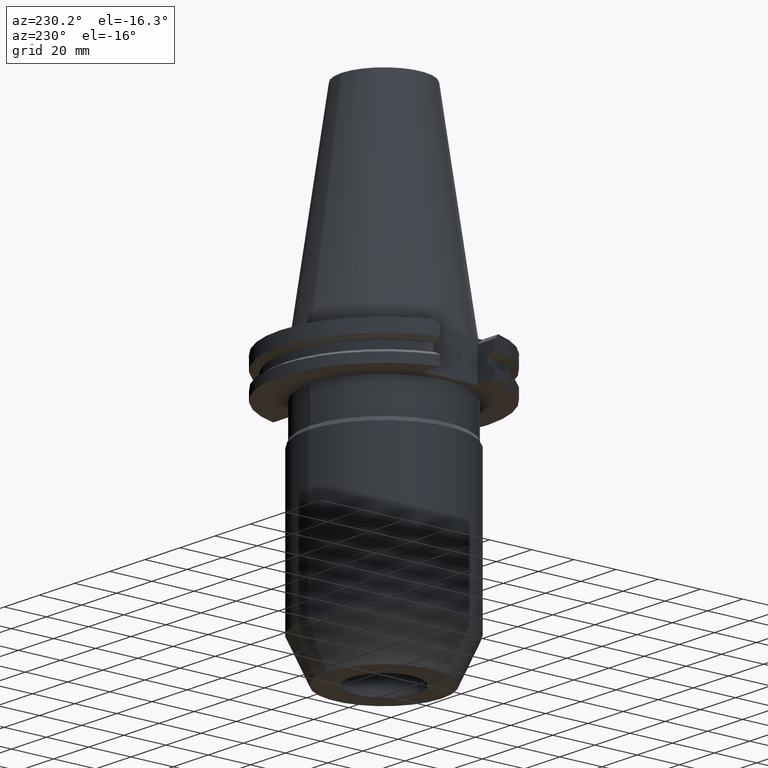
[diagram: clean part render]
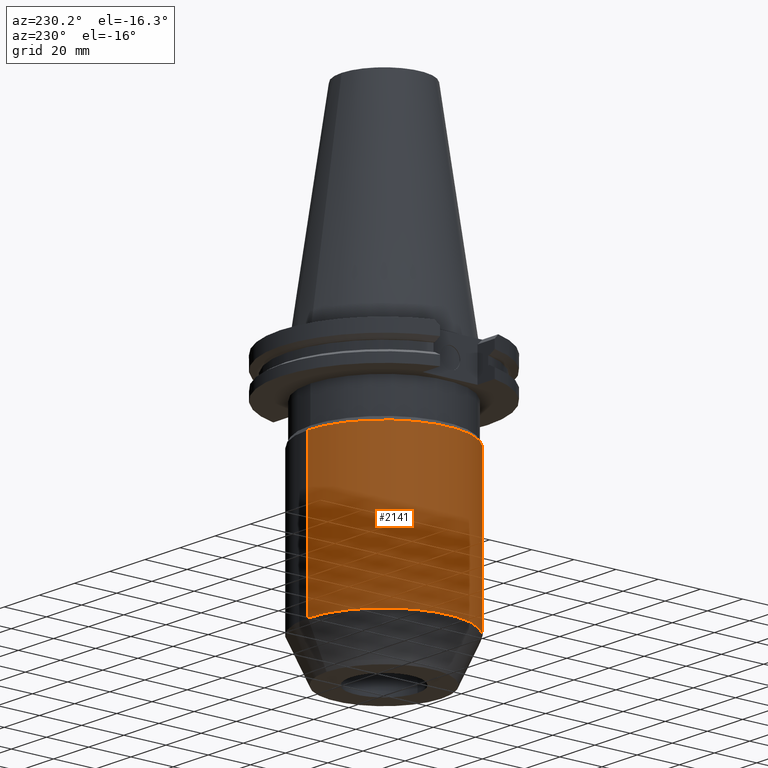
[diagram: same view with one face highlighted and labeled with its STEP entity id]
A machine part, auxiliary view. The second image highlights one B-rep face of the part: STEP entity #2141.
In plain terms, the highlighted cylindrical surface (partial cylindrical patch) has radius 36 mm, axis along (0, 0, 1).
Its self-contained STEP definition (entity closure, byte-faithful):
#900=CARTESIAN_POINT('',(0.E0,0.E0,-3.686195461814E1));
#901=DIRECTION('',(0.E0,0.E0,-1.E0));
#902=DIRECTION('',(0.E0,-1.E0,0.E0));
#903=AXIS2_PLACEMENT_3D('',#900,#901,#902);
#908=DIRECTION('',(0.E0,4.981820424865E-14,-1.E0));
#909=VECTOR('',#908,7.131356363366E1);
#910=CARTESIAN_POINT('',(0.E0,-3.6E1,-3.686195461814E1));
#911=LINE('',#910,#909);
#915=DIRECTION('',(0.E0,-4.981820424865E-14,-1.E0));
#916=VECTOR('',#915,7.131356363366E1);
#917=CARTESIAN_POINT('',(0.E0,3.6E1,-3.686195461814E1));
#918=LINE('',#917,#916);
#937=CARTESIAN_POINT('',(0.E0,0.E0,-1.081755182518E2));
#938=DIRECTION('',(0.E0,0.E0,1.E0));
#939=DIRECTION('',(0.E0,1.E0,0.E0));
#940=AXIS2_PLACEMENT_3D('',#937,#938,#939);
#1326=CARTESIAN_POINT('',(0.E0,3.6E1,-3.686195461814E1));
#1327=VERTEX_POINT('',#1326);
#1328=CARTESIAN_POINT('',(0.E0,-3.6E1,-3.686195461814E1));
#1329=VERTEX_POINT('',#1328);
#1330=CARTESIAN_POINT('',(0.E0,3.6E1,-1.081755182518E2));
#1331=VERTEX_POINT('',#1330);
#1332=CARTESIAN_POINT('',(0.E0,-3.6E1,-1.081755182518E2));
#1333=VERTEX_POINT('',#1332);
#2127=CARTESIAN_POINT('',(0.E0,0.E0,-1.3843E2));
#2128=DIRECTION('',(0.E0,0.E0,1.E0));
#2129=DIRECTION('',(0.E0,1.E0,0.E0));
#2130=AXIS2_PLACEMENT_3D('',#2127,#2128,#2129);
#2131=CYLINDRICAL_SURFACE('',#2130,3.6E1);
#2133=ORIENTED_EDGE('',*,*,#2132,.F.);
#2134=ORIENTED_EDGE('',*,*,#2122,.F.);
#2136=ORIENTED_EDGE('',*,*,#2135,.T.);
#2138=ORIENTED_EDGE('',*,*,#2137,.F.);
#2139=EDGE_LOOP('',(#2133,#2134,#2136,#2138));
#2140=FACE_OUTER_BOUND('',#2139,.F.);
#904=CIRCLE('',#903,3.6E1);
#941=CIRCLE('',#940,3.599999999999E1);
#2122=EDGE_CURVE('',#1329,#1327,#904,.T.);
#2132=EDGE_CURVE('',#1327,#1331,#918,.T.);
#2135=EDGE_CURVE('',#1329,#1333,#911,.T.);
#2137=EDGE_CURVE('',#1331,#1333,#941,.T.);
#2141=ADVANCED_FACE('',(#2140),#2131,.T.);